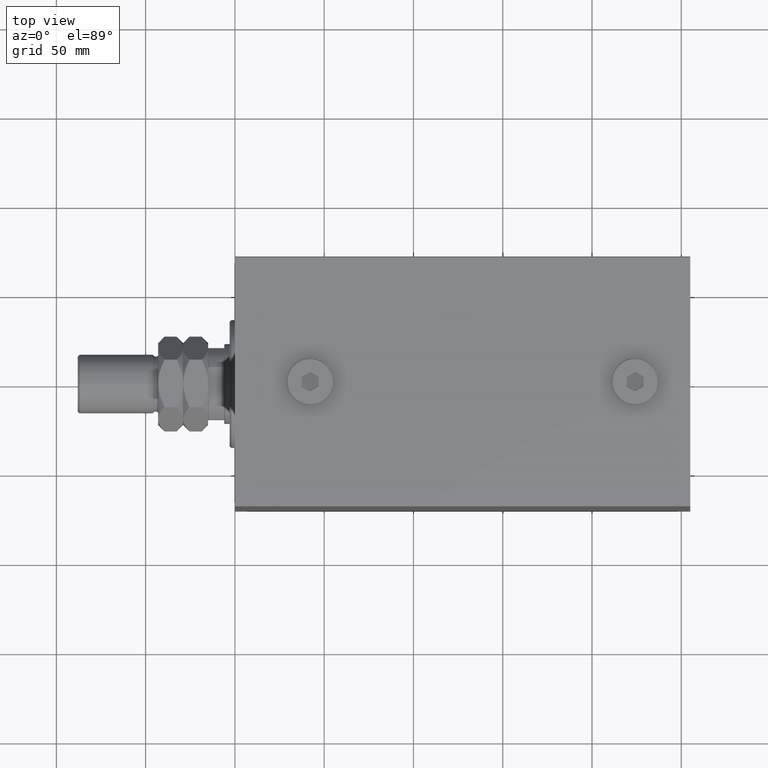
[diagram: clean part render]
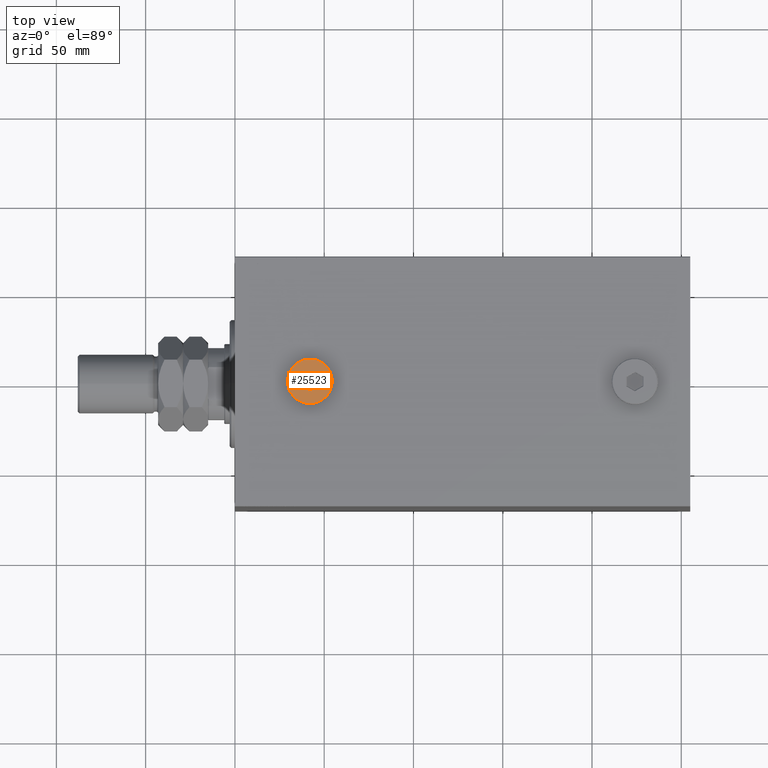
[diagram: same view with one face highlighted and labeled with its STEP entity id]
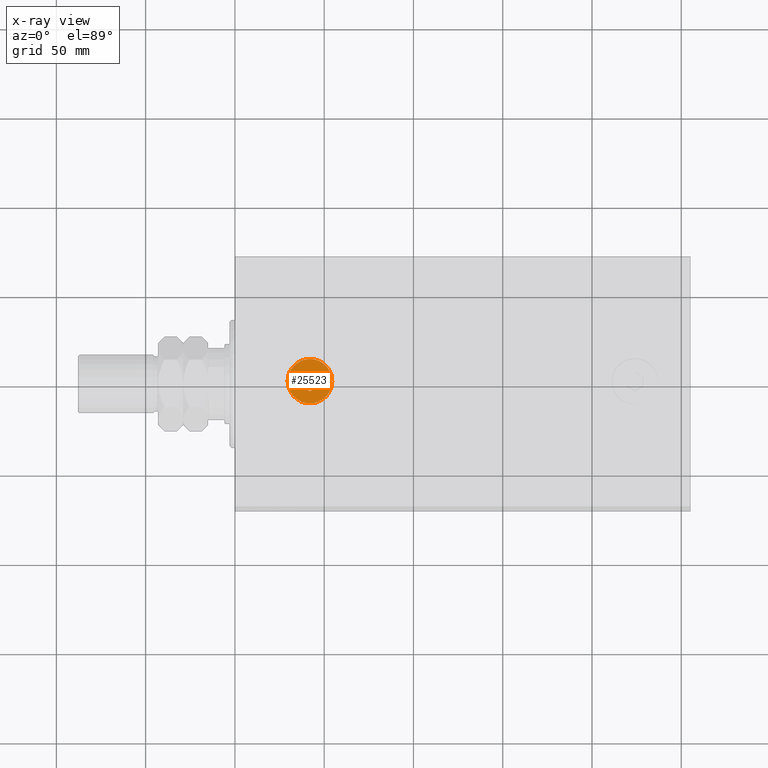
[diagram: x-ray of the same camera — body ghosted, the highlighted face saturated]
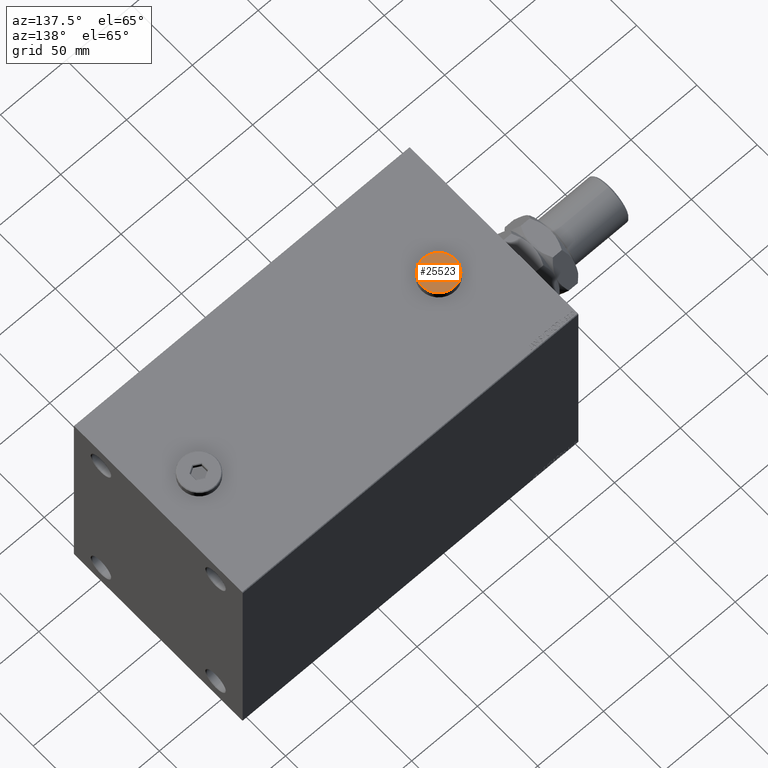
[diagram: same view with one face highlighted and labeled with its STEP entity id]
A machine part, top view. The second image highlights one B-rep face of the part: STEP entity #25523.
The next image is the same camera in x-ray: the body ghosted, the highlighted face saturated — about 0% of this face is hidden behind the body in this view.
A second angle (auxiliary view) of the same face is appended — the face is thin or edge-on in the first view.
In plain terms, the highlighted planar face has unit normal (0, 0, 1).
Its self-contained STEP definition (entity closure, byte-faithful):
#277 = LINE ( 'NONE', #14395, #26096 ) ;
#1622 = VECTOR ( 'NONE', #41739, 1000.000000000000000 ) ;
#1729 = LINE ( 'NONE', #41481, #31997 ) ;
#3724 = CARTESIAN_POINT ( 'NONE',  ( 12.50000000000001066, 1.561424668912876097E-15, 5.000000000000000000 ) ) ;
#4255 = DIRECTION ( 'NONE',  ( 0.000000000000000000, 0.000000000000000000, 1.000000000000000000 ) ) ;
#5391 = CARTESIAN_POINT ( 'NONE',  ( 0.000000000000000000, 0.000000000000000000, 5.000000000000000000 ) ) ;
#5942 = ORIENTED_EDGE ( 'NONE', *, *, #44135, .T. ) ;
#8586 = ORIENTED_EDGE ( 'NONE', *, *, #23892, .T. ) ;
#8777 = CARTESIAN_POINT ( 'NONE',  ( 0.000000000000000000, 0.000000000000000000, 5.000000000000000000 ) ) ;
#9011 = ORIENTED_EDGE ( 'NONE', *, *, #10127, .T. ) ;
#9097 = CARTESIAN_POINT ( 'NONE',  ( 0.000000000000000000, 0.000000000000000000, 5.000000000000000000 ) ) ;
#9869 = CARTESIAN_POINT ( 'NONE',  ( -4.833333333333340143, 2.501851166488380240, 5.000000000000000000 ) ) ;
#10127 = EDGE_CURVE ( 'NONE', #36306, #17835, #46328, .T. ) ;
#10267 = VERTEX_POINT ( 'NONE', #37639 ) ;
#10995 = CIRCLE ( 'NONE', #45432, 12.50000000000001066 ) ;
#11179 = DIRECTION ( 'NONE',  ( 0.8660254037844387076, -0.4999999999999998890, 0.000000000000000000 ) ) ;
#12463 = DIRECTION ( 'NONE',  ( 1.000000000000000000, 0.000000000000000000, 0.000000000000000000 ) ) ;
#13110 = CARTESIAN_POINT ( 'NONE',  ( 4.833333333333341919, 2.790526301083194216, 5.000000000000000000 ) ) ;
#14303 = CARTESIAN_POINT ( 'NONE',  ( 4.583333333333339255, 2.934863868380602092, 5.000000000000000000 ) ) ;
#14395 = CARTESIAN_POINT ( 'NONE',  ( 0.2500000000000015543, -5.436715034868981888, 5.000000000000000000 ) ) ;
#15203 = DIRECTION ( 'NONE',  ( 0.000000000000000000, 0.000000000000000000, 1.000000000000000000 ) ) ;
#15341 = DIRECTION ( 'NONE',  ( -0.8660254037844387076, -0.4999999999999998335, 0.000000000000000000 ) ) ;
#15672 = DIRECTION ( 'NONE',  ( 1.000000000000000000, 0.000000000000000000, -0.000000000000000000 ) ) ;
#16295 = VECTOR ( 'NONE', #33503, 1000.000000000000114 ) ;
#16924 = EDGE_CURVE ( 'NONE', #17835, #32604, #23286, .T. ) ;
#17831 = ORIENTED_EDGE ( 'NONE', *, *, #16924, .T. ) ;
#17835 = VERTEX_POINT ( 'NONE', #30478 ) ;
#18605 = LINE ( 'NONE', #14303, #27815 ) ;
#19427 = AXIS2_PLACEMENT_3D ( 'NONE', #5391, #15203, #15672 ) ;
#19874 = DIRECTION ( 'NONE',  ( 0.000000000000000000, 0.000000000000000000, 1.000000000000000000 ) ) ;
#21272 = ORIENTED_EDGE ( 'NONE', *, *, #46970, .T. ) ;
#21831 = CARTESIAN_POINT ( 'NONE',  ( -0.2500000000000021094, 5.436715034868981000, 5.000000000000000000 ) ) ;
#21874 = CARTESIAN_POINT ( 'NONE',  ( 4.833333333333341919, -2.790526301083194216, 5.000000000000000000 ) ) ;
#22336 = CARTESIAN_POINT ( 'NONE',  ( -4.833333333333340143, 2.790526301083195104, 5.000000000000000000 ) ) ;
#23286 = LINE ( 'NONE', #9869, #1622 ) ;
#23539 = VERTEX_POINT ( 'NONE', #3724 ) ;
#23569 = PLANE ( 'NONE',  #19427 ) ;
#23892 = EDGE_CURVE ( 'NONE', #32604, #10267, #40052, .T. ) ;
#24166 = EDGE_CURVE ( 'NONE', #10267, #33332, #18605, .T. ) ;
#24273 = EDGE_CURVE ( 'NONE', #39707, #23539, #10995, .T. ) ;
#25523 = ADVANCED_FACE ( 'NONE', ( #30756, #33642 ), #23569, .T. ) ;
#26096 = VECTOR ( 'NONE', #15341, 1000.000000000000000 ) ;
#26785 = CIRCLE ( 'NONE', #31375, 12.50000000000001066 ) ;
#27236 = EDGE_LOOP ( 'NONE', ( #17831, #8586, #31886, #36509, #21272, #9011 ) ) ;
#27815 = VECTOR ( 'NONE', #11179, 1000.000000000000000 ) ;
#30478 = CARTESIAN_POINT ( 'NONE',  ( -4.833333333333340143, -2.790526301083195104, 5.000000000000000000 ) ) ;
#30756 = FACE_BOUND ( 'NONE', #27236, .T. ) ;
#31203 = DIRECTION ( 'NONE',  ( -0.8660254037844385966, 0.5000000000000001110, 0.000000000000000000 ) ) ;
#31375 = AXIS2_PLACEMENT_3D ( 'NONE', #9097, #19874, #12463 ) ;
#31886 = ORIENTED_EDGE ( 'NONE', *, *, #24166, .T. ) ;
#31997 = VECTOR ( 'NONE', #41713, 1000.000000000000000 ) ;
#32604 = VERTEX_POINT ( 'NONE', #22336 ) ;
#33332 = VERTEX_POINT ( 'NONE', #13110 ) ;
#33503 = DIRECTION ( 'NONE',  ( 0.8660254037844388186, 0.4999999999999997780, 0.000000000000000000 ) ) ;
#33642 = FACE_OUTER_BOUND ( 'NONE', #45229, .T. ) ;
#33673 = ORIENTED_EDGE ( 'NONE', *, *, #24273, .T. ) ;
#34418 = CARTESIAN_POINT ( 'NONE',  ( -1.883403334290581714E-15, -5.581052602166390209, 5.000000000000000000 ) ) ;
#35111 = EDGE_CURVE ( 'NONE', #33332, #46789, #1729, .T. ) ;
#36306 = VERTEX_POINT ( 'NONE', #34418 ) ;
#36509 = ORIENTED_EDGE ( 'NONE', *, *, #35111, .T. ) ;
#37639 = CARTESIAN_POINT ( 'NONE',  ( 1.144664513637780713E-15, 5.581052602166389320, 5.000000000000000000 ) ) ;
#38983 = VECTOR ( 'NONE', #31203, 1000.000000000000114 ) ;
#39188 = CARTESIAN_POINT ( 'NONE',  ( -12.50000000000001066, 0.000000000000000000, 5.000000000000000000 ) ) ;
#39707 = VERTEX_POINT ( 'NONE', #39188 ) ;
#40052 = LINE ( 'NONE', #21831, #16295 ) ;
#41481 = CARTESIAN_POINT ( 'NONE',  ( 4.833333333333341919, -2.501851166488378908, 5.000000000000000000 ) ) ;
#41713 = DIRECTION ( 'NONE',  ( 0.000000000000000000, -1.000000000000000000, 0.000000000000000000 ) ) ;
#41739 = DIRECTION ( 'NONE',  ( 0.000000000000000000, 1.000000000000000000, 0.000000000000000000 ) ) ;
#44135 = EDGE_CURVE ( 'NONE', #23539, #39707, #26785, .T. ) ;
#45229 = EDGE_LOOP ( 'NONE', ( #33673, #5942 ) ) ;
#45432 = AXIS2_PLACEMENT_3D ( 'NONE', #8777, #4255, #45451 ) ;
#45451 = DIRECTION ( 'NONE',  ( 1.000000000000000000, 0.000000000000000000, 0.000000000000000000 ) ) ;
#45613 = CARTESIAN_POINT ( 'NONE',  ( -4.583333333333337478, -2.934863868380603424, 5.000000000000000000 ) ) ;
#46328 = LINE ( 'NONE', #45613, #38983 ) ;
#46789 = VERTEX_POINT ( 'NONE', #21874 ) ;
#46970 = EDGE_CURVE ( 'NONE', #46789, #36306, #277, .T. ) ;